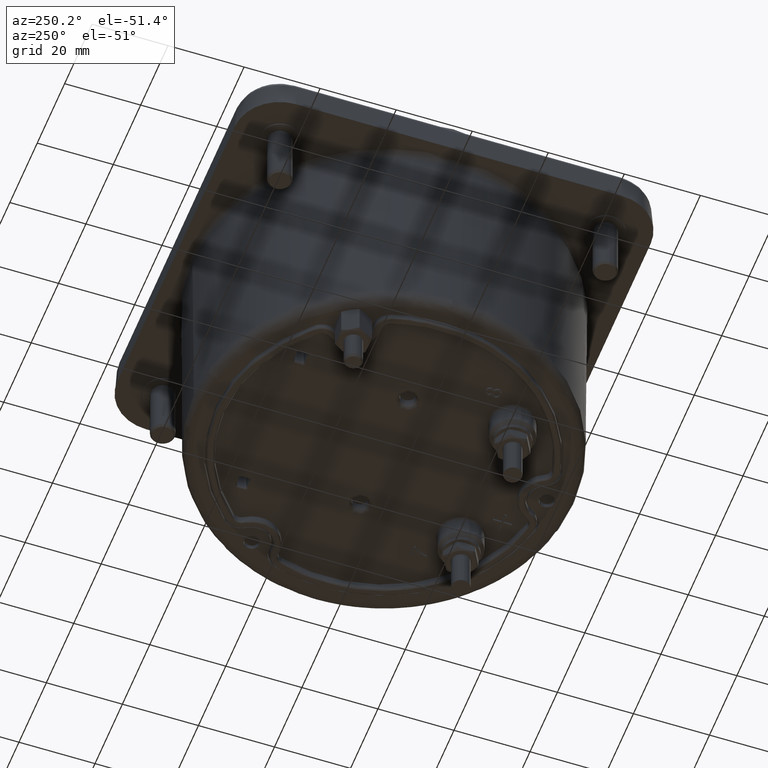
[diagram: clean part render]
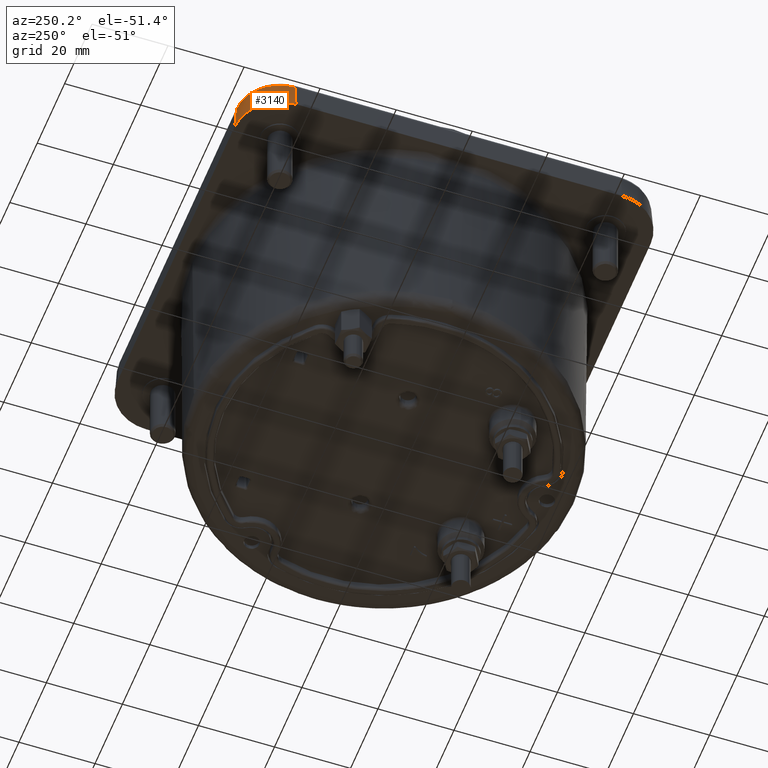
[diagram: same view with one face highlighted and labeled with its STEP entity id]
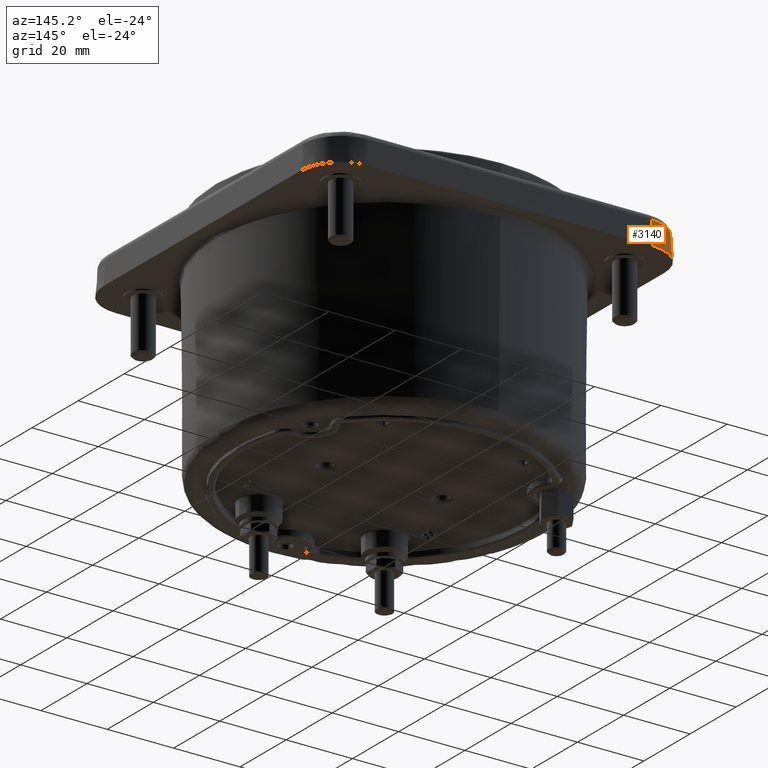
[diagram: same view with one face highlighted and labeled with its STEP entity id]
A machine part, auxiliary view. The second image highlights one B-rep face of the part: STEP entity #3140.
A second angle (auxiliary view) of the same face is appended — the face is thin or edge-on in the first view.
In plain terms, the highlighted conical surface has half-angle 4 deg.
Its self-contained STEP definition (entity closure, byte-faithful):
#1571 = CARTESIAN_POINT ( 'NONE',  ( -2.133475103427696862, 1.687007872627659388, 2.357098934979472649 ) ) ;
#1582 = ORIENTED_EDGE ( 'NONE', *, *, #11559, .T. ) ;
#1637 = CARTESIAN_POINT ( 'NONE',  ( -2.153543308184228344, 1.687007872614602277, 2.070110236220472189 ) ) ;
#1914 = EDGE_CURVE ( 'NONE', #16397, #11161, #21072, .T. ) ;
#2902 = AXIS2_PLACEMENT_3D ( 'NONE', #7254, #20606, #15234 ) ;
#3140 = ADVANCED_FACE ( 'NONE', ( #17069 ), #11614, .T. ) ;
#3227 = DIRECTION ( 'NONE',  ( 0.000000000000000000, 0.000000000000000000, -1.000000000000000000 ) ) ;
#4487 = CARTESIAN_POINT ( 'NONE',  ( -1.687007875113362143, 1.687007872918137696, 2.070110236220472189 ) ) ;
#4961 = AXIS2_PLACEMENT_3D ( 'NONE', #4487, #21307, #9612 ) ;
#5026 = DIRECTION ( 'NONE',  ( 0.06975647366454637566, 4.538471703306039120E-11, 0.9975640502653888575 ) ) ;
#5438 = CARTESIAN_POINT ( 'NONE',  ( -2.153543307086614345, 1.687007872766370209, 2.070110236220472189 ) ) ;
#5794 = ORIENTED_EDGE ( 'NONE', *, *, #6916, .T. ) ;
#6006 = AXIS2_PLACEMENT_3D ( 'NONE', #8172, #3227, #8280 ) ;
#6362 = VERTEX_POINT ( 'NONE', #11324 ) ;
#6916 = EDGE_CURVE ( 'NONE', #7320, #16397, #16934, .T. ) ;
#7196 = EDGE_CURVE ( 'NONE', #7320, #6362, #11621, .T. ) ;
#7254 = CARTESIAN_POINT ( 'NONE',  ( -1.687007875113362143, 1.687007872918137696, 2.357098934942082558 ) ) ;
#7320 = VERTEX_POINT ( 'NONE', #5438 ) ;
#7584 = VECTOR ( 'NONE', #15783, 39.37007874015748854 ) ;
#7703 = EDGE_LOOP ( 'NONE', ( #1582, #16750, #5794, #21397 ) ) ;
#8172 = CARTESIAN_POINT ( 'NONE',  ( -1.687007875113362143, 1.687007872918137696, 2.070110236220472189 ) ) ;
#8280 = DIRECTION ( 'NONE',  ( -1.000000000000000000, 0.000000000000000000, 0.000000000000000000 ) ) ;
#9612 = DIRECTION ( 'NONE',  ( -1.000000000000000000, 0.000000000000000000, 0.000000000000000000 ) ) ;
#11161 = VERTEX_POINT ( 'NONE', #20301 ) ;
#11324 = CARTESIAN_POINT ( 'NONE',  ( -1.687007875265133849, 2.153543305989007894, 2.070110236220472189 ) ) ;
#11559 = EDGE_CURVE ( 'NONE', #11161, #6362, #15680, .T. ) ;
#11614 = CONICAL_SURFACE ( 'NONE', #6006, 0.4665354330708661457, 0.06981316999999953588 ) ;
#11621 = CIRCLE ( 'NONE', #4961, 0.4665354330708661457 ) ;
#12853 = VECTOR ( 'NONE', #5026, 39.37007874015748854 ) ;
#13952 = CARTESIAN_POINT ( 'NONE',  ( -1.687007875416903557, 2.153543305989003898, 2.070110236220472189 ) ) ;
#15234 = DIRECTION ( 'NONE',  ( 6.506258816232933613E-10, -1.000000000000000000, -1.223761933834266947E-15 ) ) ;
#15680 = LINE ( 'NONE', #13952, #7584 ) ;
#15783 = DIRECTION ( 'NONE',  ( -4.538549575684428989E-11, 0.06975647366454637566, -0.9975640502653888575 ) ) ;
#16397 = VERTEX_POINT ( 'NONE', #1571 ) ;
#16750 = ORIENTED_EDGE ( 'NONE', *, *, #7196, .F. ) ;
#16934 = LINE ( 'NONE', #1637, #12853 ) ;
#17069 = FACE_OUTER_BOUND ( 'NONE', #7703, .T. ) ;
#20301 = CARTESIAN_POINT ( 'NONE',  ( -1.687007875403846446, 2.133475101235145832, 2.357098934941283641 ) ) ;
#20606 = DIRECTION ( 'NONE',  ( 0.000000000000000000, 0.000000000000000000, -1.000000000000000000 ) ) ;
#21072 = CIRCLE ( 'NONE', #2902, 0.4464672283284528143 ) ;
#21307 = DIRECTION ( 'NONE',  ( 0.000000000000000000, 0.000000000000000000, -1.000000000000000000 ) ) ;
#21397 = ORIENTED_EDGE ( 'NONE', *, *, #1914, .T. ) ;